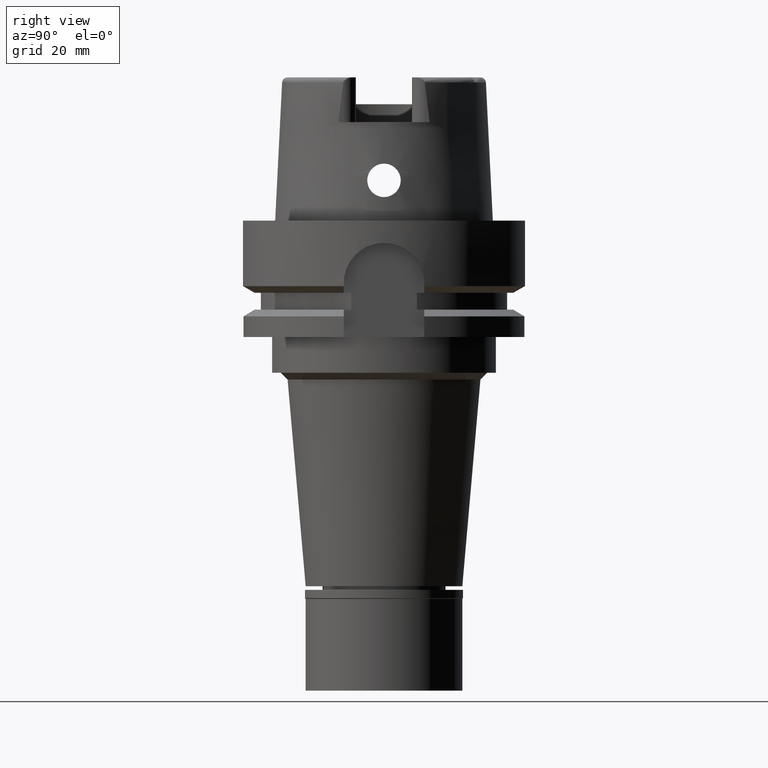
[diagram: clean part render]
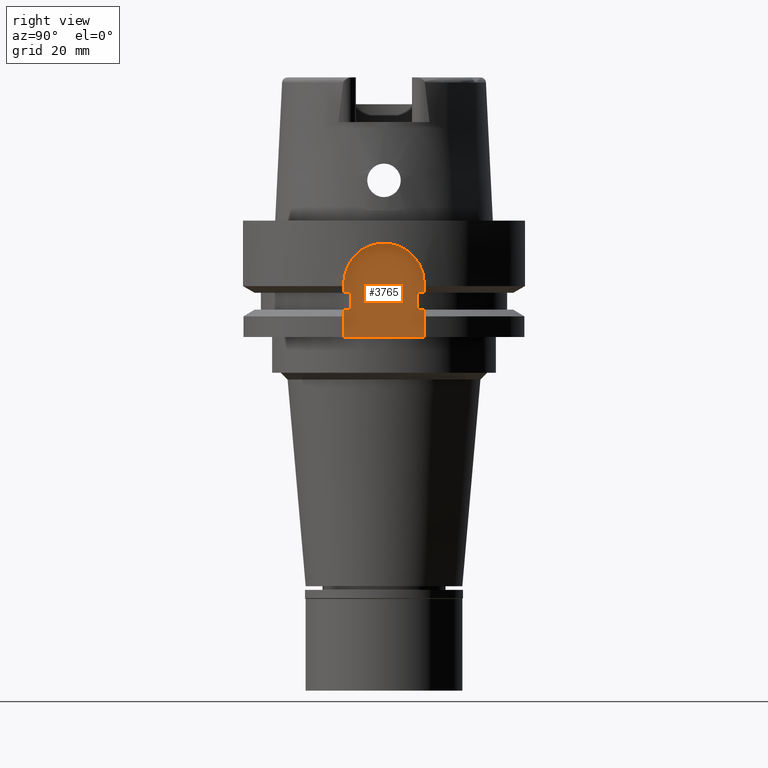
[diagram: same view with one face highlighted and labeled with its STEP entity id]
A machine part, right view. The second image highlights one B-rep face of the part: STEP entity #3765.
In plain terms, the highlighted planar face has unit normal (1, 0, 0).
Its self-contained STEP definition (entity closure, byte-faithful):
#40 = EDGE_CURVE ( 'NONE', #3271, #1252, #442, .T. ) ;
#127 = VERTEX_POINT ( 'NONE', #1411 ) ;
#148 = CARTESIAN_POINT ( 'NONE',  ( 26.50000000000000000, 7.348469228349999938, -16.12500000000000000 ) ) ;
#154 = CIRCLE ( 'NONE', #3327, 9.000000000000000000 ) ;
#157 = ORIENTED_EDGE ( 'NONE', *, *, #4408, .T. ) ;
#198 = CARTESIAN_POINT ( 'NONE',  ( 26.50000000000000000, -9.000000000000000000, -16.12500000000000000 ) ) ;
#203 = VERTEX_POINT ( 'NONE', #4009 ) ;
#237 = DIRECTION ( 'NONE',  ( 1.000000000000000000, 0.0000000000000000000, 0.0000000000000000000 ) ) ;
#248 = VECTOR ( 'NONE', #336, 1000.000000000000000 ) ;
#336 = DIRECTION ( 'NONE',  ( 0.0000000000000000000, 0.0000000000000000000, -1.000000000000000000 ) ) ;
#351 = CARTESIAN_POINT ( 'NONE',  ( 26.50000000000000000, -9.000000000000000000, -26.00000000000000000 ) ) ;
#403 = DIRECTION ( 'NONE',  ( 0.0000000000000000000, 0.0000000000000000000, 1.000000000000000000 ) ) ;
#408 = EDGE_CURVE ( 'NONE', #5446, #127, #2408, .T. ) ;
#416 = CARTESIAN_POINT ( 'NONE',  ( 26.50000000000000000, -9.000000000000000000, -26.00000000000000000 ) ) ;
#425 = EDGE_CURVE ( 'NONE', #3102, #4128, #2899, .T. ) ;
#442 = LINE ( 'NONE', #2621, #836 ) ;
#519 = CARTESIAN_POINT ( 'NONE',  ( 26.50000000000000000, -9.000000000000000000, -19.87500000000000000 ) ) ;
#628 = VERTEX_POINT ( 'NONE', #519 ) ;
#720 = CARTESIAN_POINT ( 'NONE',  ( 26.50000000000000000, -9.000000000000000000, -16.12500000000000000 ) ) ;
#784 = LINE ( 'NONE', #3635, #4122 ) ;
#790 = CARTESIAN_POINT ( 'NONE',  ( 26.50000000000000000, 7.348469228349999938, -19.87500000000000000 ) ) ;
#836 = VECTOR ( 'NONE', #5127, 1000.000000000000000 ) ;
#948 = EDGE_LOOP ( 'NONE', ( #4994, #2061, #1221, #1351, #3985, #3496, #4325, #3762, #1095, #2015, #2235, #157 ) ) ;
#1094 = PLANE ( 'NONE',  #3151 ) ;
#1095 = ORIENTED_EDGE ( 'NONE', *, *, #1624, .T. ) ;
#1125 = CARTESIAN_POINT ( 'NONE',  ( 26.50000000000000000, 9.000000000000000000, -19.87500000000000000 ) ) ;
#1150 = DIRECTION ( 'NONE',  ( 2.366280491871000116E-14, 1.000000000000000000, 0.0000000000000000000 ) ) ;
#1160 = DIRECTION ( 'NONE',  ( 0.0000000000000000000, 0.0000000000000000000, 1.000000000000000000 ) ) ;
#1186 = CARTESIAN_POINT ( 'NONE',  ( 26.50000000000000000, 7.348469228349999938, -16.12500000000000000 ) ) ;
#1221 = ORIENTED_EDGE ( 'NONE', *, *, #40, .T. ) ;
#1252 = VERTEX_POINT ( 'NONE', #148 ) ;
#1271 = VECTOR ( 'NONE', #4514, 1000.000000000000000 ) ;
#1351 = ORIENTED_EDGE ( 'NONE', *, *, #1850, .T. ) ;
#1411 = CARTESIAN_POINT ( 'NONE',  ( 26.50000000000000000, 9.000000000000000000, -16.12500000000000000 ) ) ;
#1574 = DIRECTION ( 'NONE',  ( 0.0000000000000000000, 1.000000000000000000, 0.0000000000000000000 ) ) ;
#1624 = EDGE_CURVE ( 'NONE', #3831, #2919, #5264, .T. ) ;
#1850 = EDGE_CURVE ( 'NONE', #1252, #127, #2500, .T. ) ;
#1895 = VECTOR ( 'NONE', #3259, 1000.000000000000000 ) ;
#1987 = DIRECTION ( 'NONE',  ( 0.0000000000000000000, 0.0000000000000000000, -1.000000000000000000 ) ) ;
#2015 = ORIENTED_EDGE ( 'NONE', *, *, #4037, .F. ) ;
#2061 = ORIENTED_EDGE ( 'NONE', *, *, #3529, .F. ) ;
#2235 = ORIENTED_EDGE ( 'NONE', *, *, #2277, .F. ) ;
#2277 = EDGE_CURVE ( 'NONE', #4135, #628, #5023, .T. ) ;
#2300 = CARTESIAN_POINT ( 'NONE',  ( 26.50000000000000000, -7.348469228349999938, -16.12500000000000000 ) ) ;
#2336 = DIRECTION ( 'NONE',  ( 0.0000000000000000000, 0.0000000000000000000, 1.000000000000000000 ) ) ;
#2347 = CARTESIAN_POINT ( 'NONE',  ( 26.50000000000000000, 0.0000000000000000000, 0.0000000000000000000 ) ) ;
#2408 = LINE ( 'NONE', #4918, #4015 ) ;
#2500 = LINE ( 'NONE', #1186, #1895 ) ;
#2621 = CARTESIAN_POINT ( 'NONE',  ( 26.50000000000000000, 7.348469228349999938, -19.87500000000000000 ) ) ;
#2648 = CARTESIAN_POINT ( 'NONE',  ( 26.50000000000000000, -9.000000000000000000, -26.00000000000000000 ) ) ;
#2687 = VECTOR ( 'NONE', #1160, 1000.000000000000000 ) ;
#2738 = CARTESIAN_POINT ( 'NONE',  ( 26.50000000000000000, 9.000000000000000000, -14.00000000000000000 ) ) ;
#2815 = CARTESIAN_POINT ( 'NONE',  ( 26.50000000000000000, 0.0000000000000000000, -14.00000000000000000 ) ) ;
#2864 = VECTOR ( 'NONE', #403, 1000.000000000000000 ) ;
#2891 = EDGE_CURVE ( 'NONE', #3102, #3831, #4487, .T. ) ;
#2899 = LINE ( 'NONE', #720, #2687 ) ;
#2919 = VERTEX_POINT ( 'NONE', #3150 ) ;
#2936 = VECTOR ( 'NONE', #3180, 1000.000000000000000 ) ;
#3040 = CARTESIAN_POINT ( 'NONE',  ( 26.50000000000000000, -9.000000000000000000, -14.00000000000000000 ) ) ;
#3068 = LINE ( 'NONE', #2648, #5473 ) ;
#3102 = VERTEX_POINT ( 'NONE', #4916 ) ;
#3148 = VECTOR ( 'NONE', #1150, 1000.000000000000000 ) ;
#3150 = CARTESIAN_POINT ( 'NONE',  ( 26.50000000000000000, -7.348469228349999938, -19.87500000000000000 ) ) ;
#3151 = AXIS2_PLACEMENT_3D ( 'NONE', #2347, #237, #3492 ) ;
#3180 = DIRECTION ( 'NONE',  ( 0.0000000000000000000, 0.0000000000000000000, -1.000000000000000000 ) ) ;
#3189 = EDGE_CURVE ( 'NONE', #4128, #5446, #154, .T. ) ;
#3259 = DIRECTION ( 'NONE',  ( 2.366280491871000116E-14, 1.000000000000000000, 0.0000000000000000000 ) ) ;
#3271 = VERTEX_POINT ( 'NONE', #4475 ) ;
#3327 = AXIS2_PLACEMENT_3D ( 'NONE', #2815, #4456, #2336 ) ;
#3492 = DIRECTION ( 'NONE',  ( 0.0000000000000000000, 1.000000000000000000, 0.0000000000000000000 ) ) ;
#3496 = ORIENTED_EDGE ( 'NONE', *, *, #3189, .F. ) ;
#3529 = EDGE_CURVE ( 'NONE', #3271, #4800, #4076, .T. ) ;
#3635 = CARTESIAN_POINT ( 'NONE',  ( 26.50000000000000000, -9.000000000000000000, -19.87500000000000000 ) ) ;
#3654 = CARTESIAN_POINT ( 'NONE',  ( 26.50000000000000000, -7.348469228349999938, -16.12500000000000000 ) ) ;
#3737 = CARTESIAN_POINT ( 'NONE',  ( 26.50000000000000000, 9.000000000000000000, -19.87500000000000000 ) ) ;
#3762 = ORIENTED_EDGE ( 'NONE', *, *, #2891, .T. ) ;
#3765 = ADVANCED_FACE ( 'NONE', ( #5185 ), #1094, .T. ) ;
#3831 = VERTEX_POINT ( 'NONE', #2300 ) ;
#3985 = ORIENTED_EDGE ( 'NONE', *, *, #408, .F. ) ;
#3997 = EDGE_CURVE ( 'NONE', #4800, #203, #4981, .T. ) ;
#4009 = CARTESIAN_POINT ( 'NONE',  ( 26.50000000000000000, 9.000000000000000000, -26.00000000000000000 ) ) ;
#4015 = VECTOR ( 'NONE', #1987, 1000.000000000000000 ) ;
#4037 = EDGE_CURVE ( 'NONE', #628, #2919, #784, .T. ) ;
#4076 = LINE ( 'NONE', #790, #3148 ) ;
#4122 = VECTOR ( 'NONE', #5435, 1000.000000000000000 ) ;
#4128 = VERTEX_POINT ( 'NONE', #3040 ) ;
#4135 = VERTEX_POINT ( 'NONE', #416 ) ;
#4325 = ORIENTED_EDGE ( 'NONE', *, *, #425, .F. ) ;
#4408 = EDGE_CURVE ( 'NONE', #4135, #203, #3068, .T. ) ;
#4456 = DIRECTION ( 'NONE',  ( -1.000000000000000000, 0.0000000000000000000, 0.0000000000000000000 ) ) ;
#4475 = CARTESIAN_POINT ( 'NONE',  ( 26.50000000000000000, 7.348469228349999938, -19.87500000000000000 ) ) ;
#4487 = LINE ( 'NONE', #198, #1271 ) ;
#4514 = DIRECTION ( 'NONE',  ( -2.366280491871000116E-14, 1.000000000000000000, 0.0000000000000000000 ) ) ;
#4800 = VERTEX_POINT ( 'NONE', #1125 ) ;
#4916 = CARTESIAN_POINT ( 'NONE',  ( 26.50000000000000000, -9.000000000000000000, -16.12500000000000000 ) ) ;
#4918 = CARTESIAN_POINT ( 'NONE',  ( 26.50000000000000000, 9.000000000000000000, -14.00000000000000000 ) ) ;
#4981 = LINE ( 'NONE', #3737, #248 ) ;
#4994 = ORIENTED_EDGE ( 'NONE', *, *, #3997, .F. ) ;
#5023 = LINE ( 'NONE', #351, #2864 ) ;
#5127 = DIRECTION ( 'NONE',  ( 0.0000000000000000000, 0.0000000000000000000, 1.000000000000000000 ) ) ;
#5185 = FACE_OUTER_BOUND ( 'NONE', #948, .T. ) ;
#5264 = LINE ( 'NONE', #3654, #2936 ) ;
#5435 = DIRECTION ( 'NONE',  ( -2.366280491871000116E-14, 1.000000000000000000, 0.0000000000000000000 ) ) ;
#5446 = VERTEX_POINT ( 'NONE', #2738 ) ;
#5473 = VECTOR ( 'NONE', #1574, 1000.000000000000000 ) ;